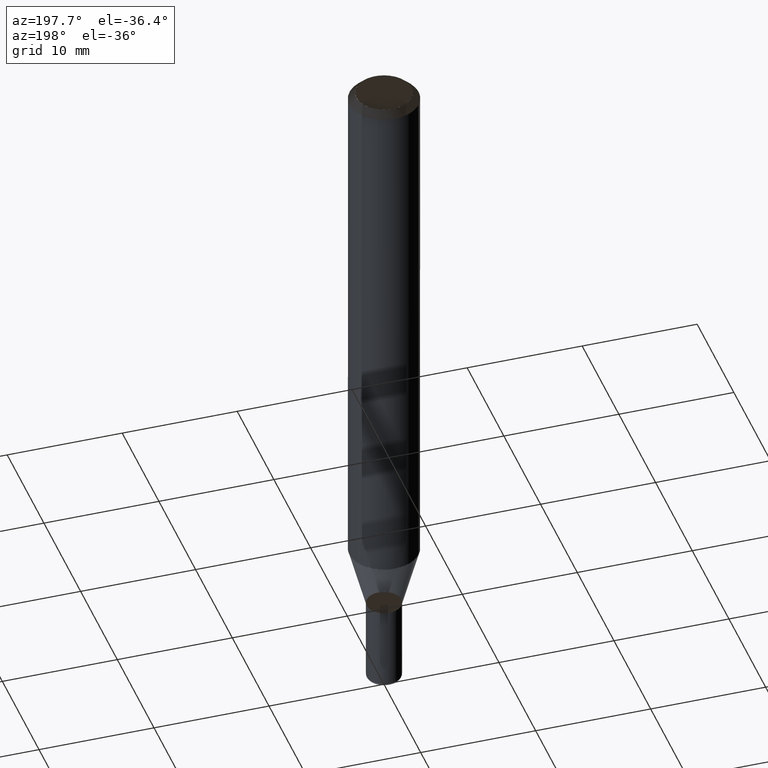
[diagram: clean part render]
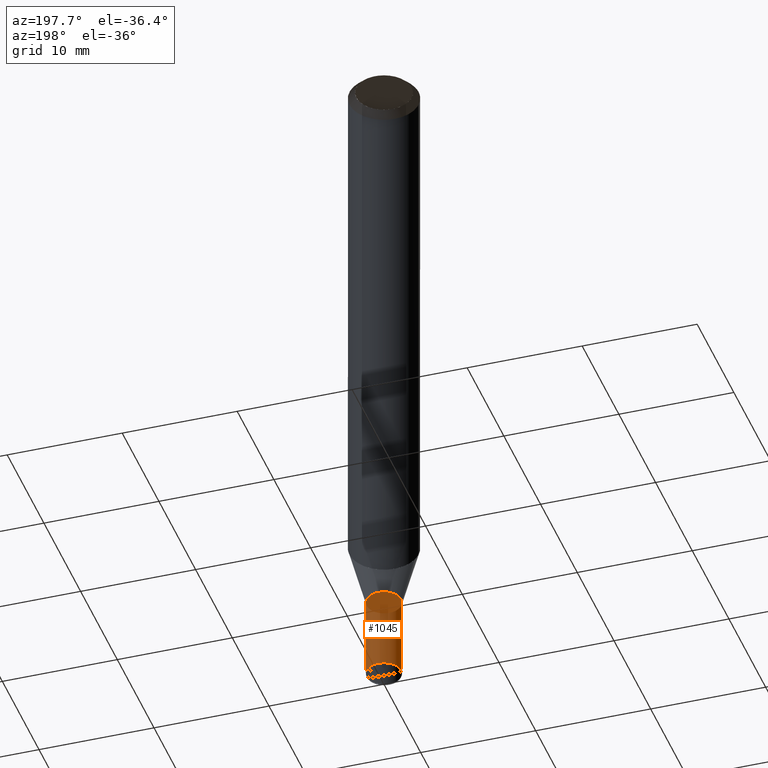
[diagram: same view with one face highlighted and labeled with its STEP entity id]
A machine part, auxiliary view. The second image highlights one B-rep face of the part: STEP entity #1045.
In plain terms, the highlighted face is a freeform B-spline surface patch.
Its self-contained STEP definition (entity closure, byte-faithful):
#927=CARTESIAN_POINT('',(1.5,0.0,-12.898076211353));
#928=CARTESIAN_POINT('',(1.5,1.5,-12.898076211353));
#929=CARTESIAN_POINT('',(0.0,1.5,-12.898076211353));
#930=CARTESIAN_POINT('',(-1.5,1.5,-12.898076211353));
#931=CARTESIAN_POINT('',(-1.5,0.0,-12.898076211353));
#932=CARTESIAN_POINT('',(1.5,0.0,-5.598076211353));
#933=CARTESIAN_POINT('',(1.5,1.5,-5.598076211353));
#934=CARTESIAN_POINT('',(0.0,1.5,-5.598076211353));
#935=CARTESIAN_POINT('',(-1.5,1.5,-5.598076211353));
#936=CARTESIAN_POINT('',(-1.5,0.0,-5.598076211353));
#1026=(
BOUNDED_SURFACE()
B_SPLINE_SURFACE(1,2,(
(#927,#928,#929,#930,#931),
(#932,#933,#934,#935,#936)
), .UNSPECIFIED.,.F.,.F.,.F.)
B_SPLINE_SURFACE_WITH_KNOTS((2,2),(3,2,3),(
0.0,1.0),(
0.0,0.5,1.0), .UNSPECIFIED.)
GEOMETRIC_REPRESENTATION_ITEM()
RATIONAL_B_SPLINE_SURFACE(((1.0,0.707106781187,1.0,0.707106781187,1.0),
(1.0,0.707106781187,1.0,0.707106781187,1.0)
))
REPRESENTATION_ITEM('')
SURFACE()
);
#1027=(
BOUNDED_CURVE()
B_SPLINE_CURVE(2,(#932,#933,#934,#935,#936),.UNSPECIFIED.,.F.,.F.)
B_SPLINE_CURVE_WITH_KNOTS((3,2,3),
(0.0,0.5,1.0),.UNSPECIFIED.)
CURVE()
GEOMETRIC_REPRESENTATION_ITEM()
RATIONAL_B_SPLINE_CURVE((1.0,0.707106781187,1.0,0.707106781187,1.0))
REPRESENTATION_ITEM('')
);
#1028=(
BOUNDED_CURVE()
B_SPLINE_CURVE(1,(#936,#931),.UNSPECIFIED.,.F.,.F.)
B_SPLINE_CURVE_WITH_KNOTS((2,2),
(0.0,1.0),.UNSPECIFIED.)
CURVE()
GEOMETRIC_REPRESENTATION_ITEM()
RATIONAL_B_SPLINE_CURVE((1.0,1.0))
REPRESENTATION_ITEM('')
);
#1029=(
BOUNDED_CURVE()
B_SPLINE_CURVE(2,(#931,#930,#929,#928,#927),.UNSPECIFIED.,.F.,.F.)
B_SPLINE_CURVE_WITH_KNOTS((3,2,3),
(0.0,0.5,1.0),.UNSPECIFIED.)
CURVE()
GEOMETRIC_REPRESENTATION_ITEM()
RATIONAL_B_SPLINE_CURVE((1.0,0.707106781187,1.0,0.707106781187,1.0))
REPRESENTATION_ITEM('')
);
#1030=(
BOUNDED_CURVE()
B_SPLINE_CURVE(1,(#927,#932),.UNSPECIFIED.,.F.,.F.)
B_SPLINE_CURVE_WITH_KNOTS((2,2),
(0.0,1.0),.UNSPECIFIED.)
CURVE()
GEOMETRIC_REPRESENTATION_ITEM()
RATIONAL_B_SPLINE_CURVE((1.0,1.0))
REPRESENTATION_ITEM('')
);
#1031=VERTEX_POINT('',#927);
#1032=VERTEX_POINT('',#931);
#1033=VERTEX_POINT('',#932);
#1034=VERTEX_POINT('',#936);
#1035=EDGE_CURVE('',#1033,#1034,#1027,.T.);
#1036=EDGE_CURVE('',#1034,#1032,#1028,.T.);
#1037=EDGE_CURVE('',#1032,#1031,#1029,.T.);
#1038=EDGE_CURVE('',#1031,#1033,#1030,.T.);
#1039=ORIENTED_EDGE('',*,*,#1035,.T.);
#1040=ORIENTED_EDGE('',*,*,#1036,.T.);
#1041=ORIENTED_EDGE('',*,*,#1037,.T.);
#1042=ORIENTED_EDGE('',*,*,#1038,.T.);
#1043=EDGE_LOOP('',(#1039,#1040,#1041,#1042));
#1044=FACE_OUTER_BOUND('',#1043,.T.);
#1045=ADVANCED_FACE('',(#1044),#1026,.T.);